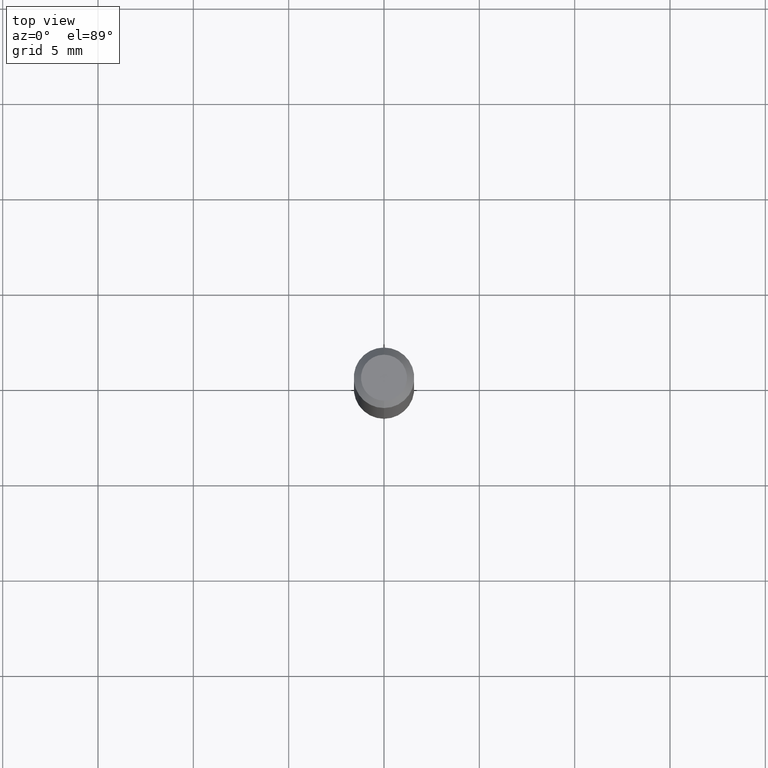
[diagram: clean part render]
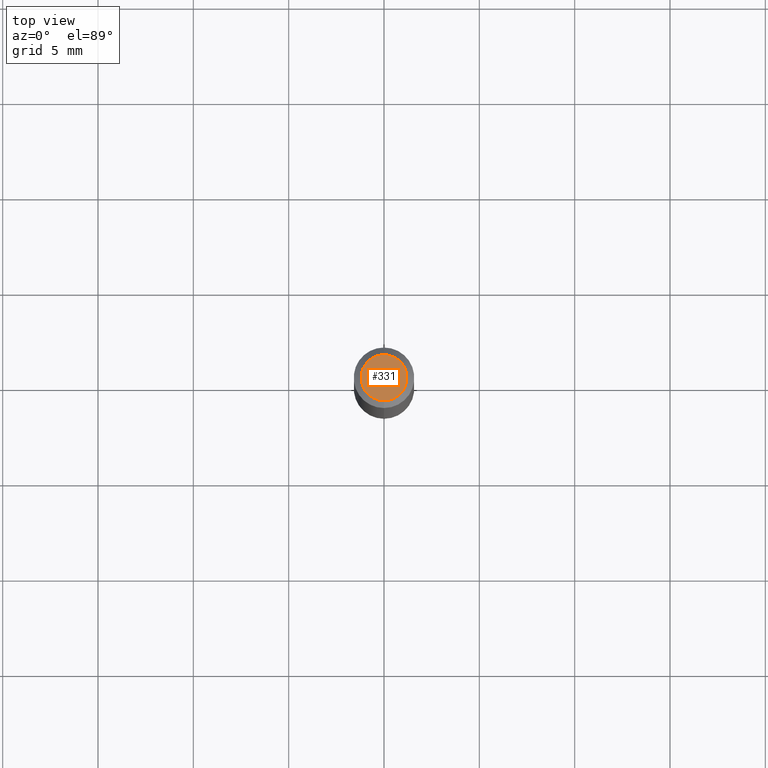
[diagram: same view with one face highlighted and labeled with its STEP entity id]
A machine part, top view. The second image highlights one B-rep face of the part: STEP entity #331.
In plain terms, the highlighted planar face has unit normal (0, -0, -1).
Its self-contained STEP definition (entity closure, byte-faithful):
#1 = DIRECTION ( 'NONE',  ( -6.982962677686266711E-15, -1.000000000000000000, 3.491485359873199591E-15 ) ) ;
#33 = DIRECTION ( 'NONE',  ( 2.445465998314857261E-29, -3.491485359873199197E-15, -1.000000000000000000 ) ) ;
#35 = DIRECTION ( 'NONE',  ( -6.982962677686266711E-15, -1.000000000000000000, 3.491485359873199591E-15 ) ) ;
#39 = DIRECTION ( 'NONE',  ( -2.445465998314857821E-29, 3.491485359873199197E-15, 1.000000000000000000 ) ) ;
#52 = EDGE_CURVE ( 'NONE', #217, #268, #454, .T. ) ;
#74 = PLANE ( 'NONE',  #120 ) ;
#120 = AXIS2_PLACEMENT_3D ( 'NONE', #142, #33, #147 ) ;
#142 = CARTESIAN_POINT ( 'NONE',  ( 3.316907271900976096E-16, 0.04749999999999999362, -1.702756188904287318E-16 ) ) ;
#147 = DIRECTION ( 'NONE',  ( 6.982962677686265922E-15, 1.000000000000000000, -3.491485359873199197E-15 ) ) ;
#190 = CARTESIAN_POINT ( 'NONE',  ( 2.166714321464292674E-46, -3.093500926871671452E-32, -8.860128592903562071E-18 ) ) ;
#217 = VERTEX_POINT ( 'NONE', #448 ) ;
#228 = CARTESIAN_POINT ( 'NONE',  ( -3.773273898774340269E-16, -0.04749999999999999362, 1.569854260010734111E-16 ) ) ;
#252 = CIRCLE ( 'NONE', #270, 0.04749999999999999362 ) ;
#268 = VERTEX_POINT ( 'NONE', #228 ) ;
#270 = AXIS2_PLACEMENT_3D ( 'NONE', #190, #39, #35 ) ;
#284 = ORIENTED_EDGE ( 'NONE', *, *, #52, .T. ) ;
#331 = ADVANCED_FACE ( 'NONE', ( #381 ), #74, .F. ) ;
#352 = DIRECTION ( 'NONE',  ( -2.445465998314857821E-29, 3.491485359873199197E-15, 1.000000000000000000 ) ) ;
#381 = FACE_OUTER_BOUND ( 'NONE', #477, .T. ) ;
#390 = CARTESIAN_POINT ( 'NONE',  ( 2.166714321464292674E-46, -3.093500926871671452E-32, -8.860128592903562071E-18 ) ) ;
#405 = EDGE_CURVE ( 'NONE', #268, #217, #252, .T. ) ;
#448 = CARTESIAN_POINT ( 'NONE',  ( 3.840629472727447874E-16, 0.04749999999999999362, -1.747056831868805136E-16 ) ) ;
#454 = CIRCLE ( 'NONE', #464, 0.04749999999999999362 ) ;
#464 = AXIS2_PLACEMENT_3D ( 'NONE', #390, #352, #1 ) ;
#477 = EDGE_LOOP ( 'NONE', ( #284, #483 ) ) ;
#483 = ORIENTED_EDGE ( 'NONE', *, *, #405, .T. ) ;